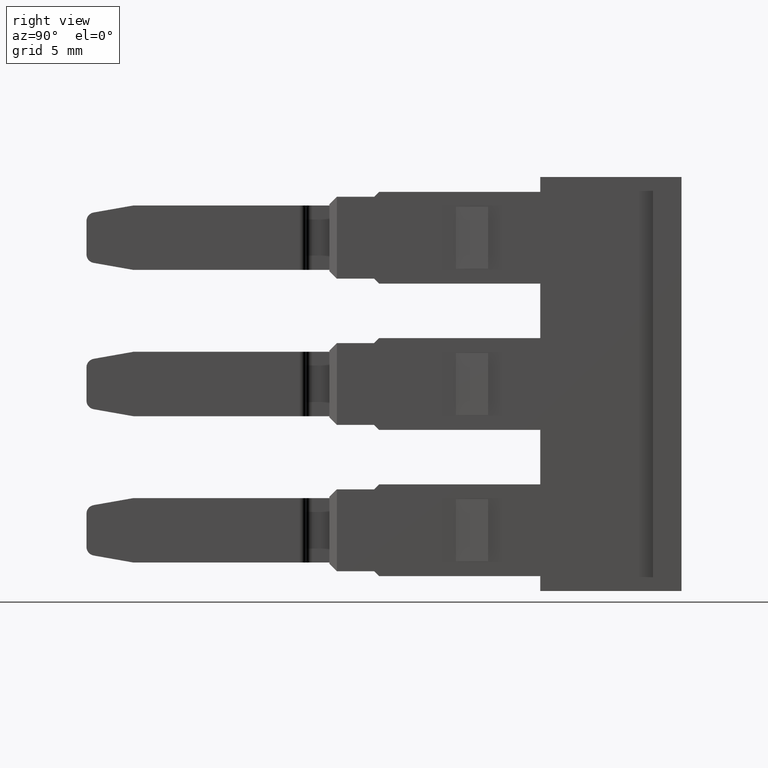
[diagram: clean part render]
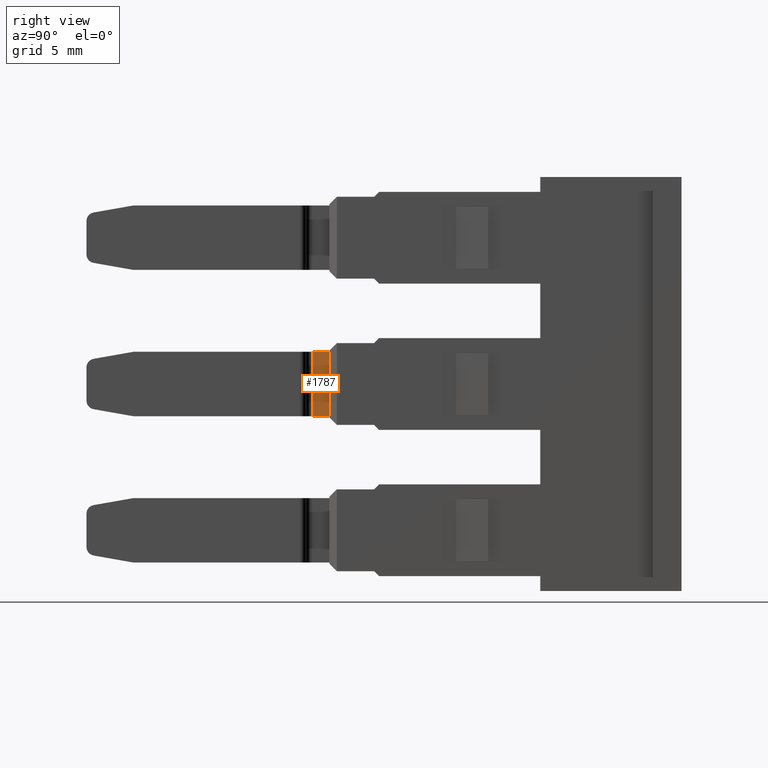
[diagram: same view with one face highlighted and labeled with its STEP entity id]
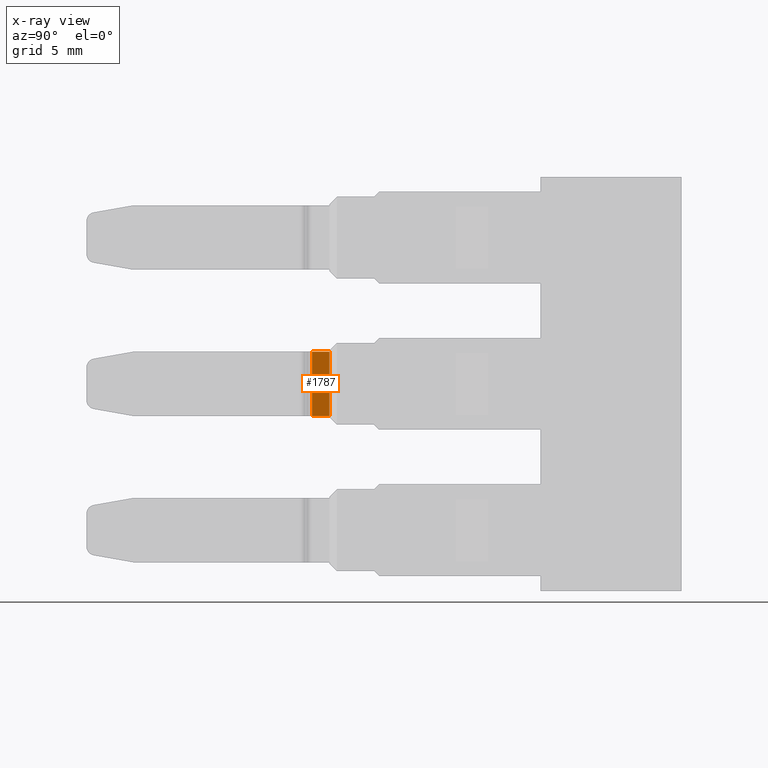
[diagram: x-ray of the same camera — body ghosted, the highlighted face saturated]
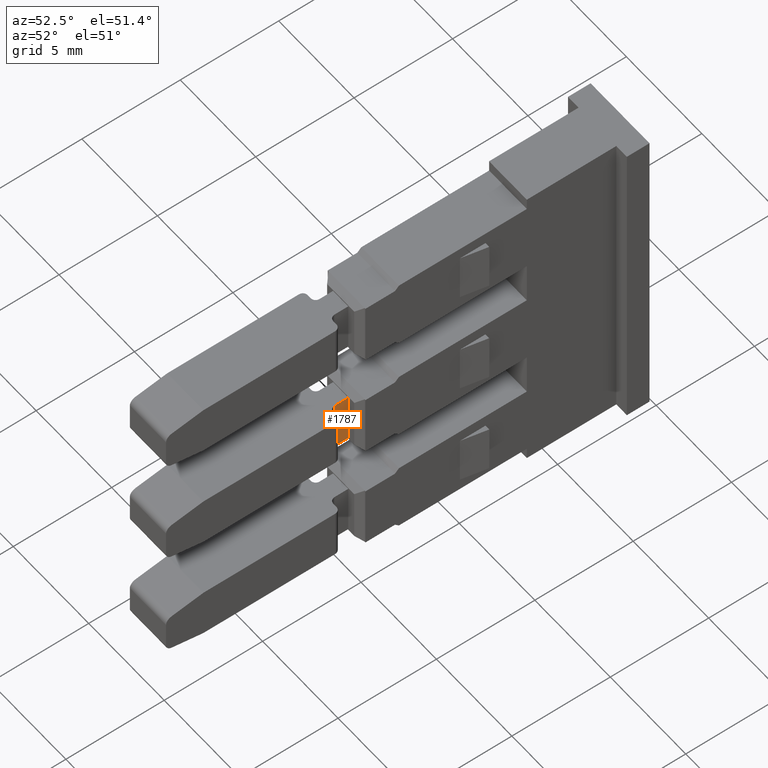
[diagram: same view with one face highlighted and labeled with its STEP entity id]
A machine part, right view. The second image highlights one B-rep face of the part: STEP entity #1787.
The next image is the same camera in x-ray: the body ghosted, the highlighted face saturated — about 0% of this face is hidden behind the body in this view.
A second angle (auxiliary view) of the same face is appended — the face is thin or edge-on in the first view.
In plain terms, the highlighted planar face has unit normal (-1, 0, -0).
Its self-contained STEP definition (entity closure, byte-faithful):
#108 = AXIS2_PLACEMENT_3D ( 'NONE', #774, #721, #733 ) ;
#721 = DIRECTION ( 'NONE',  ( -1.000000000000000000, 6.401193638283130500E-015, -1.715124499442844000E-015 ) ) ;
#733 = DIRECTION ( 'NONE',  ( -6.401193638283130500E-015, -1.000000000000000000, 0.0000000000000000000 ) ) ;
#734 = FACE_OUTER_BOUND ( 'NONE', #2608, .T. ) ;
#773 = PLANE ( 'NONE',  #108 ) ;
#774 = CARTESIAN_POINT ( 'NONE',  ( 1458.520071211366000, 1031.600621973112100, -43.19999999999000600 ) ) ;
#1324 = ORIENTED_EDGE ( 'NONE', *, *, #2121, .F. ) ;
#1525 = VECTOR ( 'NONE', #3081, 1000.000000000000000 ) ;
#1562 = VECTOR ( 'NONE', #3131, 1000.000000000000000 ) ;
#1610 = VECTOR ( 'NONE', #3208, 1000.000000000000000 ) ;
#1676 = VECTOR ( 'NONE', #3350, 1000.000000000000000 ) ;
#1787 = ADVANCED_FACE ( 'NONE', ( #734 ), #773, .F. ) ;
#2121 = EDGE_CURVE ( 'NONE', #2438, #2484, #4041, .T. ) ;
#2146 = EDGE_CURVE ( 'NONE', #2432, #2438, #3129, .T. ) ;
#2170 = EDGE_CURVE ( 'NONE', #2483, #2432, #3216, .T. ) ;
#2202 = EDGE_CURVE ( 'NONE', #2484, #2483, #3312, .T. ) ;
#2294 = ORIENTED_EDGE ( 'NONE', *, *, #2146, .F. ) ;
#2432 = VERTEX_POINT ( 'NONE', #4185 ) ;
#2438 = VERTEX_POINT ( 'NONE', #4205 ) ;
#2483 = VERTEX_POINT ( 'NONE', #4288 ) ;
#2484 = VERTEX_POINT ( 'NONE', #4284 ) ;
#2608 = EDGE_LOOP ( 'NONE', ( #3019, #3009, #1324, #2294 ) ) ;
#3009 = ORIENTED_EDGE ( 'NONE', *, *, #2202, .F. ) ;
#3019 = ORIENTED_EDGE ( 'NONE', *, *, #2170, .F. ) ;
#3080 = CARTESIAN_POINT ( 'NONE',  ( 1458.520071211366000, 995.0064289300150900, -86.69999999998630400 ) ) ;
#3081 = DIRECTION ( 'NONE',  ( -0.0000000000000000000, -1.000000000000000000, 7.952265059979819800E-014 ) ) ;
#3129 = LINE ( 'NONE', #3130, #1562 ) ;
#3130 = CARTESIAN_POINT ( 'NONE',  ( 1458.520071211366000, 995.4926795375190500, -89.38845745258858200 ) ) ;
#3131 = DIRECTION ( 'NONE',  ( 0.0000000000000000000, -0.0000000000000000000, -1.000000000000000000 ) ) ;
#3208 = DIRECTION ( 'NONE',  ( 0.0000000000000000000, 1.000000000000000000, -0.0000000000000000000 ) ) ;
#3213 = CARTESIAN_POINT ( 'NONE',  ( 1458.520071211365800, 1004.604679537520000, -84.09999999998783000 ) ) ;
#3216 = LINE ( 'NONE', #3213, #1610 ) ;
#3312 = LINE ( 'NONE', #3314, #1676 ) ;
#3314 = CARTESIAN_POINT ( 'NONE',  ( 1458.520071211365800, 994.7959515111354000, -43.19999999999000600 ) ) ;
#3350 = DIRECTION ( 'NONE',  ( -1.715124499442844000E-015, 1.097884403469707200E-029, 1.000000000000000000 ) ) ;
#4041 = LINE ( 'NONE', #3080, #1525 ) ;
#4185 = CARTESIAN_POINT ( 'NONE',  ( 1458.520071211365800, 995.4926795375190500, -84.10000000000106000 ) ) ;
#4205 = CARTESIAN_POINT ( 'NONE',  ( 1458.520071211366000, 995.4926795375190500, -86.69999999998634600 ) ) ;
#4284 = CARTESIAN_POINT ( 'NONE',  ( 1458.520071211365800, 994.7959515111354000, -86.69999999998628900 ) ) ;
#4288 = CARTESIAN_POINT ( 'NONE',  ( 1458.520071211365800, 994.7959515111354000, -84.10000000002752100 ) ) ;